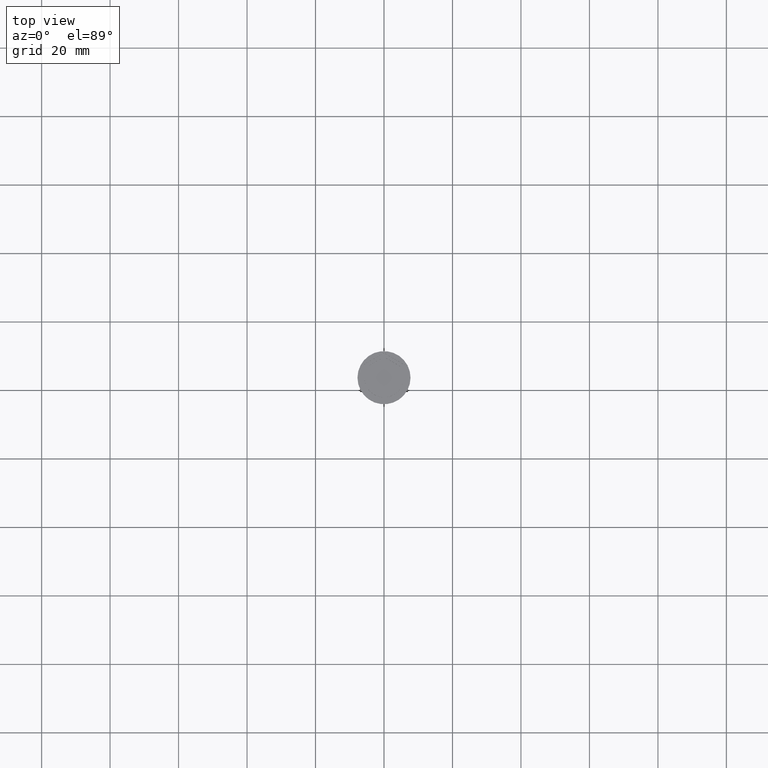
[diagram: clean part render]
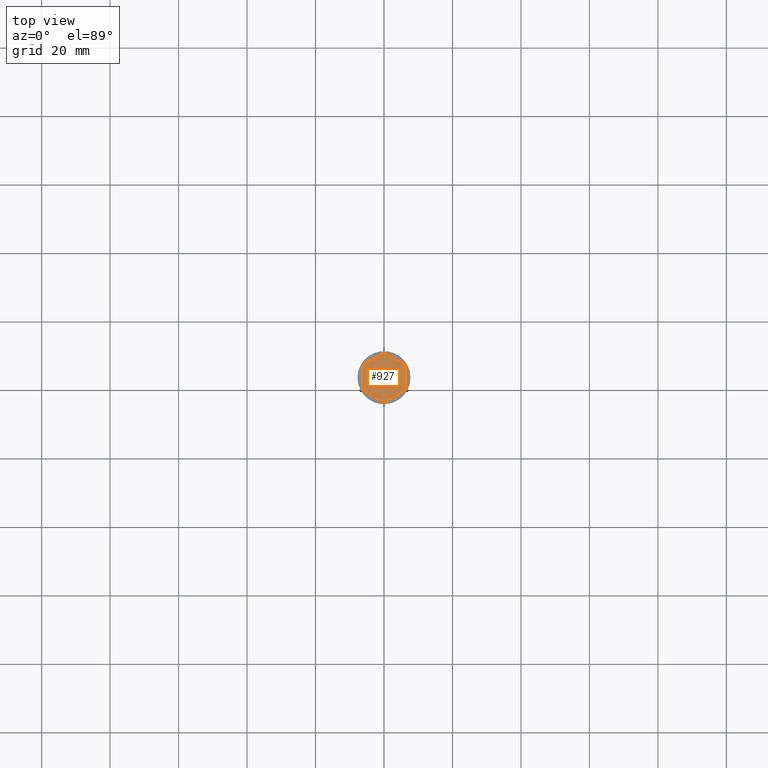
[diagram: same view with one face highlighted and labeled with its STEP entity id]
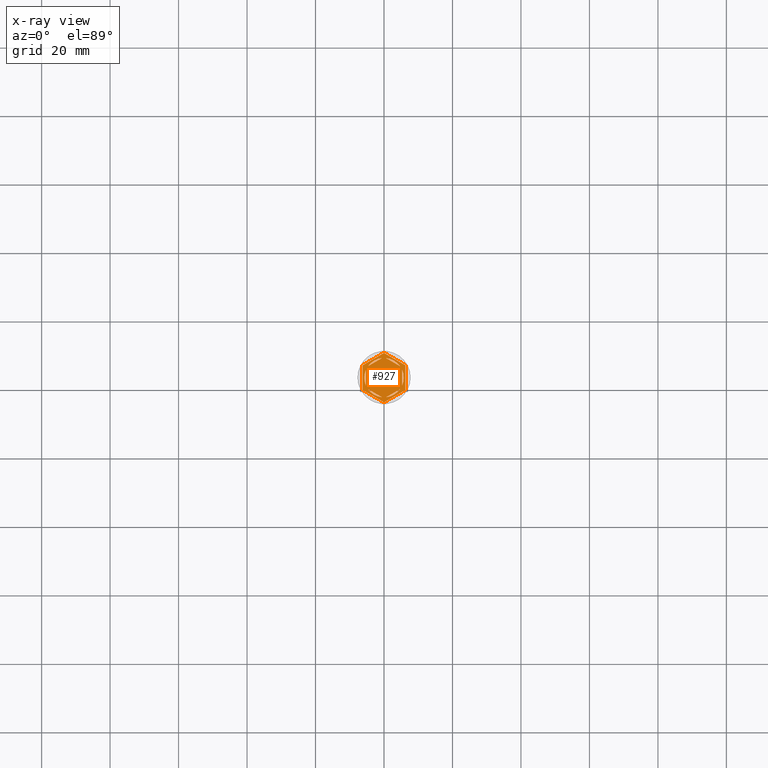
[diagram: x-ray of the same camera — body ghosted, the highlighted face saturated]
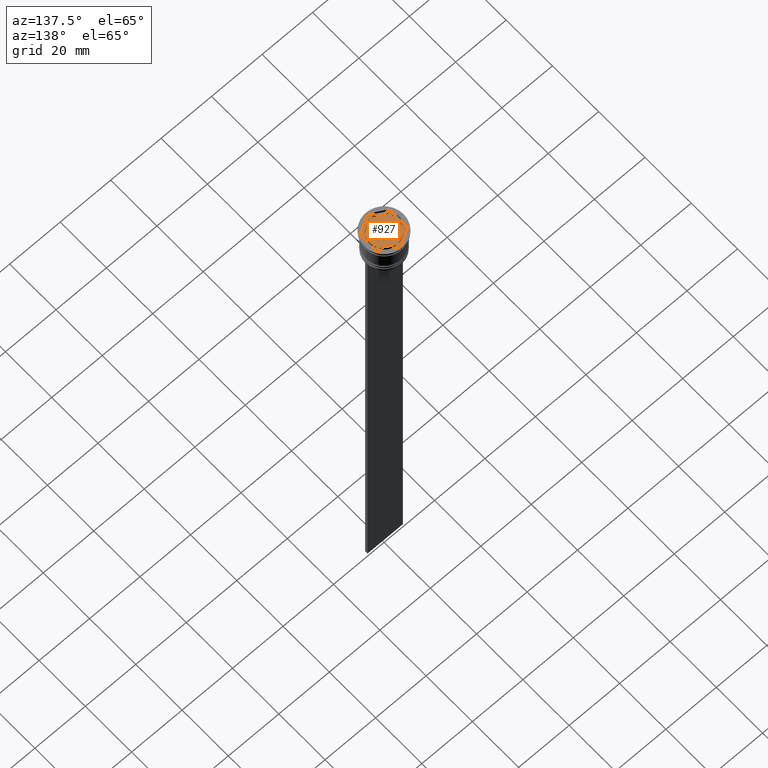
[diagram: same view with one face highlighted and labeled with its STEP entity id]
A machine part, top view. The second image highlights one B-rep face of the part: STEP entity #927.
The next image is the same camera in x-ray: the body ghosted, the highlighted face saturated — about 0% of this face is hidden behind the body in this view.
A second angle (auxiliary view) of the same face is appended — the face is thin or edge-on in the first view.
In plain terms, the highlighted planar face has unit normal (0, 0, 1).
Its self-contained STEP definition (entity closure, byte-faithful):
#6 = DIRECTION ( 'NONE',  ( 0.000000000000000000, 0.000000000000000000, 1.000000000000000000 ) ) ;
#21 = VECTOR ( 'NONE', #1775, 1000.000000000000000 ) ;
#27 = EDGE_CURVE ( 'NONE', #898, #1337, #1404, .T. ) ;
#34 = VECTOR ( 'NONE', #885, 1000.000000000000114 ) ;
#84 = EDGE_CURVE ( 'NONE', #225, #2314, #1068, .T. ) ;
#96 = CARTESIAN_POINT ( 'NONE',  ( -0.5939903988410105695, 5.719237309824159787, -1.000000000000000888 ) ) ;
#99 = EDGE_LOOP ( 'NONE', ( #1912, #1848 ) ) ;
#136 = CIRCLE ( 'NONE', #407, 5.750000000000000000 ) ;
#148 = ORIENTED_EDGE ( 'NONE', *, *, #1769, .F. ) ;
#152 = DIRECTION ( 'NONE',  ( 1.000000000000000000, 0.000000000000000000, -0.000000000000000000 ) ) ;
#187 = EDGE_CURVE ( 'NONE', #319, #1315, #1821, .T. ) ;
#200 = EDGE_CURVE ( 'NONE', #487, #1783, #607, .T. ) ;
#208 = DIRECTION ( 'NONE',  ( 1.000000000000000000, 0.000000000000000000, 0.000000000000000000 ) ) ;
#225 = VERTEX_POINT ( 'NONE', #1809 ) ;
#231 = DIRECTION ( 'NONE',  ( 1.000000000000000000, 0.000000000000000000, 0.000000000000000000 ) ) ;
#263 = AXIS2_PLACEMENT_3D ( 'NONE', #275, #1719, #2255 ) ;
#268 = EDGE_CURVE ( 'NONE', #1783, #487, #1525, .T. ) ;
#271 = CARTESIAN_POINT ( 'NONE',  ( 6.250000000000000000, 3.608439182435161374, -1.000000000000000000 ) ) ;
#275 = CARTESIAN_POINT ( 'NONE',  ( 0.000000000000000000, 0.000000000000000000, -1.000000000000000000 ) ) ;
#289 = ORIENTED_EDGE ( 'NONE', *, *, #628, .T. ) ;
#319 = VERTEX_POINT ( 'NONE', #1543 ) ;
#332 = PLANE ( 'NONE',  #1603 ) ;
#346 = VERTEX_POINT ( 'NONE', #96 ) ;
#351 = CARTESIAN_POINT ( 'NONE',  ( -4.656009601158989319, 3.374029429912446698, -1.000000000000000888 ) ) ;
#356 = VECTOR ( 'NONE', #979, 1000.000000000000114 ) ;
#363 = DIRECTION ( 'NONE',  ( -1.430775808321103440E-16, -1.000000000000000000, 0.000000000000000000 ) ) ;
#369 = CARTESIAN_POINT ( 'NONE',  ( -5.249999999999999112, -2.345207879911715310, -1.000000000000000888 ) ) ;
#383 = ORIENTED_EDGE ( 'NONE', *, *, #2212, .F. ) ;
#407 = AXIS2_PLACEMENT_3D ( 'NONE', #2258, #2076, #454 ) ;
#423 = VERTEX_POINT ( 'NONE', #860 ) ;
#454 = DIRECTION ( 'NONE',  ( 1.000000000000000000, 0.000000000000000000, 0.000000000000000000 ) ) ;
#457 = EDGE_CURVE ( 'NONE', #2184, #319, #1240, .T. ) ;
#465 = EDGE_LOOP ( 'NONE', ( #289, #788, #1549, #1942, #476, #2024 ) ) ;
#476 = ORIENTED_EDGE ( 'NONE', *, *, #1976, .T. ) ;
#487 = VERTEX_POINT ( 'NONE', #1408 ) ;
#515 = CARTESIAN_POINT ( 'NONE',  ( 5.249999999999997335, 3.031088913245537864, -1.000000000000000888 ) ) ;
#562 = VECTOR ( 'NONE', #2073, 1000.000000000000114 ) ;
#588 = CARTESIAN_POINT ( 'NONE',  ( 6.250000000000000000, 3.608439182435161374, -1.000000000000000000 ) ) ;
#607 = LINE ( 'NONE', #1234, #2094 ) ;
#608 = DIRECTION ( 'NONE',  ( 0.000000000000000000, 1.000000000000000000, 0.000000000000000000 ) ) ;
#628 = EDGE_CURVE ( 'NONE', #1351, #892, #1666, .T. ) ;
#633 = CARTESIAN_POINT ( 'NONE',  ( 8.729740977282959667E-16, -7.216878364870321860, -1.000000000000000000 ) ) ;
#671 = FACE_OUTER_BOUND ( 'NONE', #465, .T. ) ;
#707 = DIRECTION ( 'NONE',  ( 0.000000000000000000, 0.000000000000000000, 1.000000000000000000 ) ) ;
#714 = ORIENTED_EDGE ( 'NONE', *, *, #200, .F. ) ;
#762 = CARTESIAN_POINT ( 'NONE',  ( -4.656009601158991096, -3.374029429912444034, -1.000000000000000888 ) ) ;
#788 = ORIENTED_EDGE ( 'NONE', *, *, #1396, .T. ) ;
#792 = CARTESIAN_POINT ( 'NONE',  ( 0.000000000000000000, 0.000000000000000000, -1.000000000000000000 ) ) ;
#796 = EDGE_LOOP ( 'NONE', ( #148, #1766, #2051 ) ) ;
#842 = CARTESIAN_POINT ( 'NONE',  ( 0.000000000000000000, 0.000000000000000000, -1.000000000000000000 ) ) ;
#852 = FACE_BOUND ( 'NONE', #866, .T. ) ;
#860 = CARTESIAN_POINT ( 'NONE',  ( 0.5939903988410074609, -5.719237309824160675, -1.000000000000000888 ) ) ;
#866 = EDGE_LOOP ( 'NONE', ( #2044, #1452 ) ) ;
#880 = VECTOR ( 'NONE', #1564, 1000.000000000000000 ) ;
#885 = DIRECTION ( 'NONE',  ( 0.8660254037844387076, -0.4999999999999998335, 0.000000000000000000 ) ) ;
#891 = DIRECTION ( 'NONE',  ( 0.000000000000000000, 0.000000000000000000, 1.000000000000000000 ) ) ;
#892 = VERTEX_POINT ( 'NONE', #2318 ) ;
#894 = EDGE_CURVE ( 'NONE', #2301, #346, #1394, .T. ) ;
#898 = VERTEX_POINT ( 'NONE', #2154 ) ;
#922 = CARTESIAN_POINT ( 'NONE',  ( -6.249999999999999112, -3.608439182435161374, -1.000000000000000000 ) ) ;
#927 = ADVANCED_FACE ( 'NONE', ( #852, #1411, #1203, #2307, #1216, #1422, #671 ), #332, .T. ) ;
#931 = ORIENTED_EDGE ( 'NONE', *, *, #1940, .F. ) ;
#934 = DIRECTION ( 'NONE',  ( -0.8660254037844388186, 0.4999999999999997224, 0.000000000000000000 ) ) ;
#979 = DIRECTION ( 'NONE',  ( -0.8660254037844384856, 0.5000000000000002220, 0.000000000000000000 ) ) ;
#994 = DIRECTION ( 'NONE',  ( 0.000000000000000000, 0.000000000000000000, 1.000000000000000000 ) ) ;
#998 = LINE ( 'NONE', #1353, #880 ) ;
#1018 = EDGE_CURVE ( 'NONE', #1337, #898, #1446, .T. ) ;
#1034 = VERTEX_POINT ( 'NONE', #1081 ) ;
#1037 = VERTEX_POINT ( 'NONE', #1621 ) ;
#1039 = CIRCLE ( 'NONE', #2229, 5.750000000000000000 ) ;
#1040 = DIRECTION ( 'NONE',  ( 0.000000000000000000, -1.000000000000000000, 0.000000000000000000 ) ) ;
#1044 = VERTEX_POINT ( 'NONE', #1817 ) ;
#1068 = CIRCLE ( 'NONE', #1449, 5.750000000000000000 ) ;
#1081 = CARTESIAN_POINT ( 'NONE',  ( 6.249999999999998224, -3.608439182435161374, -1.000000000000000000 ) ) ;
#1166 = CARTESIAN_POINT ( 'NONE',  ( 0.000000000000000000, 0.000000000000000000, -1.000000000000000000 ) ) ;
#1169 = VECTOR ( 'NONE', #1948, 1000.000000000000114 ) ;
#1198 = DIRECTION ( 'NONE',  ( 0.000000000000000000, 0.000000000000000000, 1.000000000000000000 ) ) ;
#1203 = FACE_BOUND ( 'NONE', #99, .T. ) ;
#1211 = CARTESIAN_POINT ( 'NONE',  ( 0.000000000000000000, 7.216878364870320084, -1.000000000000000000 ) ) ;
#1216 = FACE_BOUND ( 'NONE', #796, .T. ) ;
#1234 = CARTESIAN_POINT ( 'NONE',  ( 5.249999999999996447, -3.031088913245536975, -1.000000000000000888 ) ) ;
#1240 = LINE ( 'NONE', #1620, #1553 ) ;
#1255 = EDGE_CURVE ( 'NONE', #1034, #1351, #998, .T. ) ;
#1260 = CIRCLE ( 'NONE', #1409, 5.750000000000000000 ) ;
#1276 = DIRECTION ( 'NONE',  ( 0.8660254037844385966, -0.4999999999999998890, 0.000000000000000000 ) ) ;
#1285 = ORIENTED_EDGE ( 'NONE', *, *, #894, .F. ) ;
#1286 = LINE ( 'NONE', #1453, #1366 ) ;
#1315 = VERTEX_POINT ( 'NONE', #633 ) ;
#1334 = CARTESIAN_POINT ( 'NONE',  ( 5.249999999999997335, -2.345207879911720639, -1.000000000000000888 ) ) ;
#1337 = VERTEX_POINT ( 'NONE', #1531 ) ;
#1342 = EDGE_CURVE ( 'NONE', #346, #2301, #1260, .T. ) ;
#1351 = VERTEX_POINT ( 'NONE', #271 ) ;
#1353 = CARTESIAN_POINT ( 'NONE',  ( 6.249999999999998224, -3.608439182435161374, -1.000000000000000000 ) ) ;
#1356 = CARTESIAN_POINT ( 'NONE',  ( -6.249999999999999112, 3.608439182435158710, -1.000000000000000000 ) ) ;
#1358 = EDGE_CURVE ( 'NONE', #423, #1044, #136, .T. ) ;
#1366 = VECTOR ( 'NONE', #2185, 1000.000000000000000 ) ;
#1385 = CARTESIAN_POINT ( 'NONE',  ( 8.673617379884035472E-16, 6.062177826491070398, -1.000000000000000888 ) ) ;
#1394 = LINE ( 'NONE', #1385, #21 ) ;
#1396 = EDGE_CURVE ( 'NONE', #892, #2184, #1402, .T. ) ;
#1397 = CARTESIAN_POINT ( 'NONE',  ( 0.000000000000000000, 0.000000000000000000, -1.000000000000000000 ) ) ;
#1402 = LINE ( 'NONE', #1211, #1169 ) ;
#1404 = LINE ( 'NONE', #515, #34 ) ;
#1408 = CARTESIAN_POINT ( 'NONE',  ( 5.249999999999997335, 2.345207879911718862, -1.000000000000000888 ) ) ;
#1409 = AXIS2_PLACEMENT_3D ( 'NONE', #1166, #1198, #1933 ) ;
#1411 = FACE_BOUND ( 'NONE', #1964, .T. ) ;
#1422 = FACE_BOUND ( 'NONE', #1756, .T. ) ;
#1446 = CIRCLE ( 'NONE', #1750, 5.750000000000000000 ) ;
#1449 = AXIS2_PLACEMENT_3D ( 'NONE', #2328, #6, #1615 ) ;
#1452 = ORIENTED_EDGE ( 'NONE', *, *, #27, .F. ) ;
#1453 = CARTESIAN_POINT ( 'NONE',  ( 8.729740977282959667E-16, -7.216878364870321860, -1.000000000000000000 ) ) ;
#1505 = LINE ( 'NONE', #2234, #1560 ) ;
#1509 = ORIENTED_EDGE ( 'NONE', *, *, #268, .F. ) ;
#1525 = CIRCLE ( 'NONE', #2055, 5.750000000000000000 ) ;
#1531 = CARTESIAN_POINT ( 'NONE',  ( 4.656009601158988431, 3.374029429912448919, -1.000000000000000888 ) ) ;
#1543 = CARTESIAN_POINT ( 'NONE',  ( -6.249999999999999112, -3.608439182435161374, -1.000000000000000000 ) ) ;
#1549 = ORIENTED_EDGE ( 'NONE', *, *, #457, .T. ) ;
#1553 = VECTOR ( 'NONE', #1040, 1000.000000000000000 ) ;
#1560 = VECTOR ( 'NONE', #608, 1000.000000000000000 ) ;
#1563 = VECTOR ( 'NONE', #1276, 1000.000000000000227 ) ;
#1564 = DIRECTION ( 'NONE',  ( 2.403703357979454647E-16, 1.000000000000000000, 0.000000000000000000 ) ) ;
#1603 = AXIS2_PLACEMENT_3D ( 'NONE', #842, #707, #152 ) ;
#1615 = DIRECTION ( 'NONE',  ( 1.000000000000000000, 0.000000000000000000, 0.000000000000000000 ) ) ;
#1620 = CARTESIAN_POINT ( 'NONE',  ( -6.249999999999999112, 3.608439182435158710, -1.000000000000000000 ) ) ;
#1621 = CARTESIAN_POINT ( 'NONE',  ( -0.5939903988410105695, -5.719237309824160675, -1.000000000000000888 ) ) ;
#1631 = CARTESIAN_POINT ( 'NONE',  ( 0.000000000000000000, 0.000000000000000000, -1.000000000000000000 ) ) ;
#1666 = LINE ( 'NONE', #588, #1712 ) ;
#1712 = VECTOR ( 'NONE', #934, 1000.000000000000000 ) ;
#1719 = DIRECTION ( 'NONE',  ( 0.000000000000000000, 0.000000000000000000, 1.000000000000000000 ) ) ;
#1724 = DIRECTION ( 'NONE',  ( 1.000000000000000000, 0.000000000000000000, 0.000000000000000000 ) ) ;
#1726 = CARTESIAN_POINT ( 'NONE',  ( -1.734723475976807094E-15, -6.062177826491069510, -1.000000000000000888 ) ) ;
#1750 = AXIS2_PLACEMENT_3D ( 'NONE', #1631, #891, #208 ) ;
#1755 = EDGE_CURVE ( 'NONE', #1044, #423, #2266, .T. ) ;
#1756 = EDGE_LOOP ( 'NONE', ( #1793, #1285 ) ) ;
#1766 = ORIENTED_EDGE ( 'NONE', *, *, #2082, .F. ) ;
#1769 = EDGE_CURVE ( 'NONE', #2220, #225, #2261, .T. ) ;
#1775 = DIRECTION ( 'NONE',  ( 0.8660254037844387076, 0.4999999999999999445, -0.000000000000000000 ) ) ;
#1783 = VERTEX_POINT ( 'NONE', #1334 ) ;
#1793 = ORIENTED_EDGE ( 'NONE', *, *, #1342, .F. ) ;
#1809 = CARTESIAN_POINT ( 'NONE',  ( -5.750000000000000000, 0.000000000000000000, -1.000000000000000000 ) ) ;
#1817 = CARTESIAN_POINT ( 'NONE',  ( 4.656009601158990208, -3.374029429912445810, -1.000000000000000888 ) ) ;
#1821 = LINE ( 'NONE', #922, #1563 ) ;
#1848 = ORIENTED_EDGE ( 'NONE', *, *, #1755, .F. ) ;
#1849 = EDGE_LOOP ( 'NONE', ( #931, #383 ) ) ;
#1912 = ORIENTED_EDGE ( 'NONE', *, *, #1358, .F. ) ;
#1924 = LINE ( 'NONE', #2251, #356 ) ;
#1933 = DIRECTION ( 'NONE',  ( 1.000000000000000000, 0.000000000000000000, 0.000000000000000000 ) ) ;
#1940 = EDGE_CURVE ( 'NONE', #1959, #1037, #1039, .T. ) ;
#1942 = ORIENTED_EDGE ( 'NONE', *, *, #187, .T. ) ;
#1948 = DIRECTION ( 'NONE',  ( -0.8660254037844385966, -0.5000000000000001110, 0.000000000000000000 ) ) ;
#1959 = VERTEX_POINT ( 'NONE', #762 ) ;
#1964 = EDGE_LOOP ( 'NONE', ( #1509, #714 ) ) ;
#1976 = EDGE_CURVE ( 'NONE', #1315, #1034, #1286, .T. ) ;
#2024 = ORIENTED_EDGE ( 'NONE', *, *, #1255, .T. ) ;
#2044 = ORIENTED_EDGE ( 'NONE', *, *, #1018, .F. ) ;
#2051 = ORIENTED_EDGE ( 'NONE', *, *, #84, .F. ) ;
#2055 = AXIS2_PLACEMENT_3D ( 'NONE', #792, #994, #1724 ) ;
#2073 = DIRECTION ( 'NONE',  ( -0.8660254037844387076, -0.4999999999999997224, 0.000000000000000000 ) ) ;
#2076 = DIRECTION ( 'NONE',  ( 0.000000000000000000, 0.000000000000000000, 1.000000000000000000 ) ) ;
#2082 = EDGE_CURVE ( 'NONE', #2314, #2220, #1505, .T. ) ;
#2094 = VECTOR ( 'NONE', #363, 1000.000000000000000 ) ;
#2131 = DIRECTION ( 'NONE',  ( 0.000000000000000000, 0.000000000000000000, 1.000000000000000000 ) ) ;
#2154 = CARTESIAN_POINT ( 'NONE',  ( 0.5939903988410126789, 5.719237309824160675, -1.000000000000000888 ) ) ;
#2184 = VERTEX_POINT ( 'NONE', #1356 ) ;
#2185 = DIRECTION ( 'NONE',  ( 0.8660254037844385966, 0.5000000000000001110, 0.000000000000000000 ) ) ;
#2212 = EDGE_CURVE ( 'NONE', #1037, #1959, #1924, .T. ) ;
#2220 = VERTEX_POINT ( 'NONE', #2294 ) ;
#2229 = AXIS2_PLACEMENT_3D ( 'NONE', #1397, #2131, #231 ) ;
#2234 = CARTESIAN_POINT ( 'NONE',  ( -5.249999999999999112, 3.031088913245535199, -1.000000000000000888 ) ) ;
#2251 = CARTESIAN_POINT ( 'NONE',  ( -5.249999999999999112, -3.031088913245534311, -1.000000000000000888 ) ) ;
#2255 = DIRECTION ( 'NONE',  ( 1.000000000000000000, 0.000000000000000000, 0.000000000000000000 ) ) ;
#2258 = CARTESIAN_POINT ( 'NONE',  ( 0.000000000000000000, 0.000000000000000000, -1.000000000000000000 ) ) ;
#2261 = CIRCLE ( 'NONE', #263, 5.750000000000000000 ) ;
#2266 = LINE ( 'NONE', #1726, #562 ) ;
#2294 = CARTESIAN_POINT ( 'NONE',  ( -5.249999999999999112, 2.345207879911715310, -1.000000000000000888 ) ) ;
#2301 = VERTEX_POINT ( 'NONE', #351 ) ;
#2307 = FACE_BOUND ( 'NONE', #1849, .T. ) ;
#2314 = VERTEX_POINT ( 'NONE', #369 ) ;
#2318 = CARTESIAN_POINT ( 'NONE',  ( 0.000000000000000000, 7.216878364870320084, -1.000000000000000000 ) ) ;
#2328 = CARTESIAN_POINT ( 'NONE',  ( 0.000000000000000000, 0.000000000000000000, -1.000000000000000000 ) ) ;